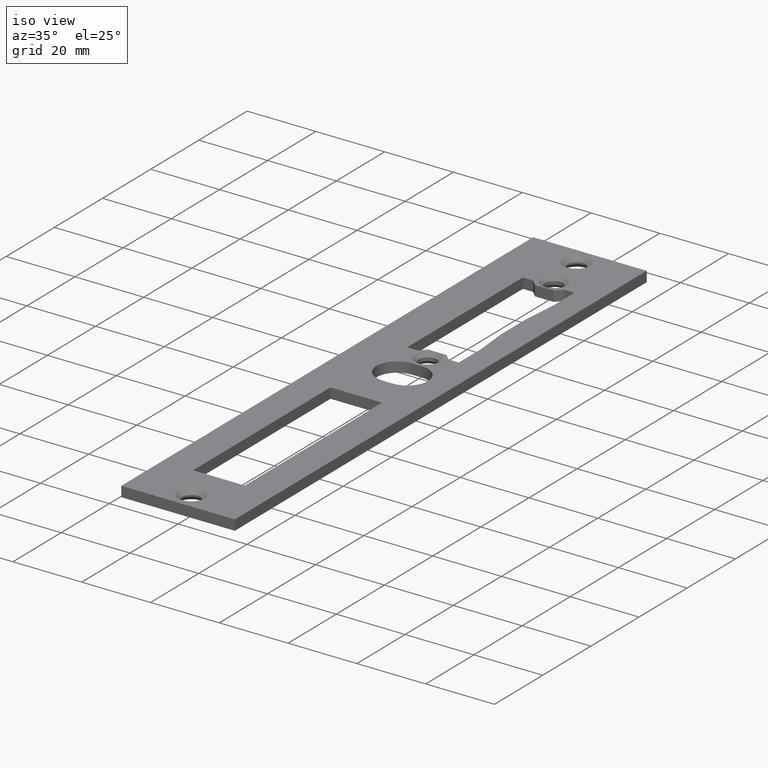
[diagram: clean part render]
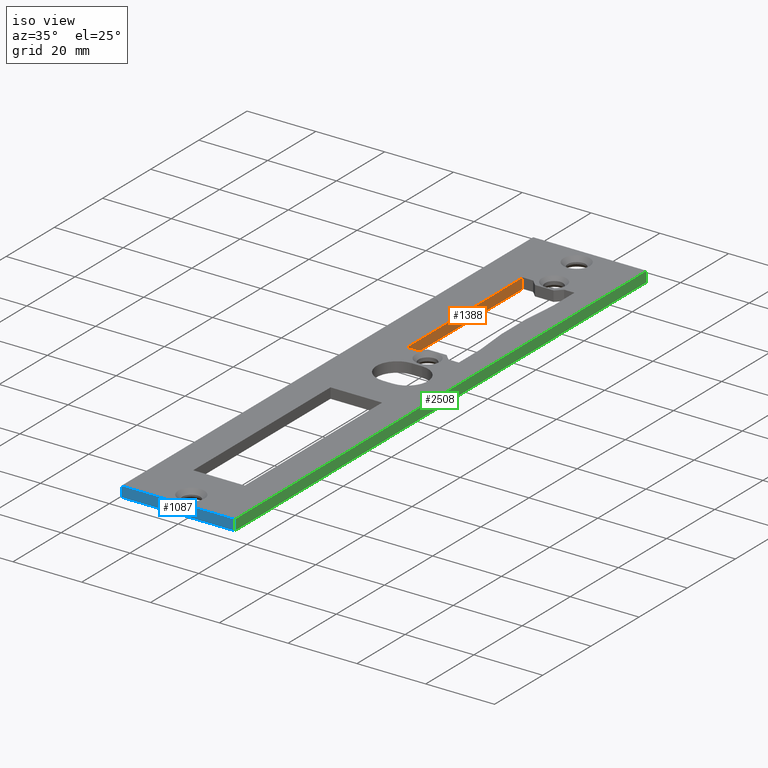
[diagram: same view with three faces highlighted in distinct colors, each labeled with its STEP entity id]
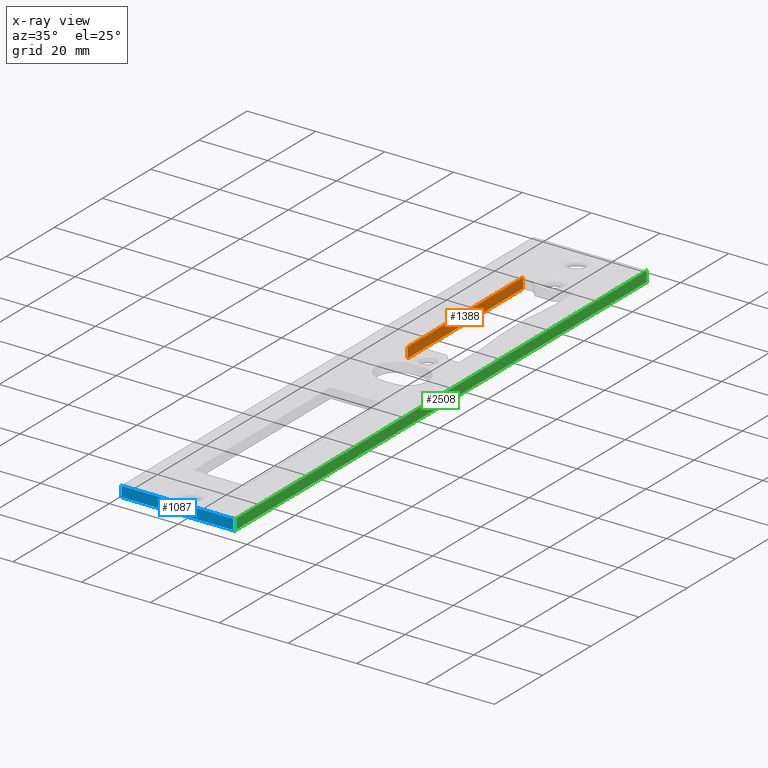
[diagram: x-ray of the same camera — body ghosted, the three highlighted faces saturated]
A machine part, iso view with three faces highlighted in distinct colors.
The next image is the same camera in x-ray (body ghosted, the three faces saturated) — at least one of them is partly hidden behind the body in this view.
Their STEP definitions:

[orange] entity #1388 — the highlighted planar face has unit normal (1, 0, -0).
#11 = VERTEX_POINT ( 'NONE', #2658 ) ;
#430 = CARTESIAN_POINT ( 'NONE',  ( -5.499999999999975131, -1.987703982890080780E-16, 3.000000000000000888 ) ) ;
#1130 = VERTEX_POINT ( 'NONE', #3932 ) ;
#1209 = DIRECTION ( 'NONE',  ( -3.614007241618345443E-17, 1.000000000000000000, 0.000000000000000000 ) ) ;
#1388 = ADVANCED_FACE ( 'NONE', ( #5460 ), #8883, .T. ) ;
#1743 = EDGE_CURVE ( 'NONE', #1130, #8403, #3670, .T. ) ;
#1823 = DIRECTION ( 'NONE',  ( -0.000000000000000000, -0.000000000000000000, -1.000000000000000000 ) ) ;
#2046 = ORIENTED_EDGE ( 'NONE', *, *, #1743, .T. ) ;
#2300 = ORIENTED_EDGE ( 'NONE', *, *, #2656, .F. ) ;
#2498 = CARTESIAN_POINT ( 'NONE',  ( -5.499999999999975131, -1.987703982890080780E-16, 0.000000000000000000 ) ) ;
#2656 = EDGE_CURVE ( 'NONE', #11, #6730, #7030, .T. ) ;
#2658 = CARTESIAN_POINT ( 'NONE',  ( -5.499999999999980460, 151.0000000000000284, 3.000000000000000888 ) ) ;
#2925 = CARTESIAN_POINT ( 'NONE',  ( -5.499999999999978684, 102.9999999999999858, 0.000000000000000000 ) ) ;
#3565 = VECTOR ( 'NONE', #3613, 1000.000000000000000 ) ;
#3613 = DIRECTION ( 'NONE',  ( -0.000000000000000000, -0.000000000000000000, -1.000000000000000000 ) ) ;
#3670 = LINE ( 'NONE', #7217, #3565 ) ;
#3932 = CARTESIAN_POINT ( 'NONE',  ( -5.499999999999978684, 102.9999999999999858, 3.000000000000000888 ) ) ;
#4072 = EDGE_CURVE ( 'NONE', #11, #1130, #7700, .T. ) ;
#4106 = DIRECTION ( 'NONE',  ( 1.000000000000000000, 3.614007241618345443E-17, -0.000000000000000000 ) ) ;
#4327 = CARTESIAN_POINT ( 'NONE',  ( -5.499999999999975131, -1.987703982890080780E-16, 3.000000000000000888 ) ) ;
#4672 = AXIS2_PLACEMENT_3D ( 'NONE', #430, #4106, #1209 ) ;
#5460 = FACE_OUTER_BOUND ( 'NONE', #8709, .T. ) ;
#5576 = VECTOR ( 'NONE', #1823, 1000.000000000000000 ) ;
#5610 = ORIENTED_EDGE ( 'NONE', *, *, #7059, .F. ) ;
#5715 = DIRECTION ( 'NONE',  ( 3.614007241618344826E-17, -1.000000000000000000, 0.000000000000000000 ) ) ;
#5988 = VECTOR ( 'NONE', #5715, 1000.000000000000000 ) ;
#6321 = VECTOR ( 'NONE', #7539, 1000.000000000000000 ) ;
#6394 = CARTESIAN_POINT ( 'NONE',  ( -5.499999999999980460, 151.0000000000000284, 0.000000000000000000 ) ) ;
#6730 = VERTEX_POINT ( 'NONE', #6394 ) ;
#6853 = ORIENTED_EDGE ( 'NONE', *, *, #4072, .T. ) ;
#7030 = LINE ( 'NONE', #8359, #5576 ) ;
#7059 = EDGE_CURVE ( 'NONE', #6730, #8403, #8555, .T. ) ;
#7217 = CARTESIAN_POINT ( 'NONE',  ( -5.499999999999978684, 102.9999999999999858, 3.000000000000000888 ) ) ;
#7539 = DIRECTION ( 'NONE',  ( 3.614007241618344826E-17, -1.000000000000000000, 0.000000000000000000 ) ) ;
#7700 = LINE ( 'NONE', #4327, #5988 ) ;
#8359 = CARTESIAN_POINT ( 'NONE',  ( -5.499999999999980460, 151.0000000000000284, 3.000000000000000888 ) ) ;
#8403 = VERTEX_POINT ( 'NONE', #2925 ) ;
#8555 = LINE ( 'NONE', #2498, #6321 ) ;
#8709 = EDGE_LOOP ( 'NONE', ( #5610, #2300, #6853, #2046 ) ) ;
#8883 = PLANE ( 'NONE',  #4672 ) ;

[blue] entity #1087 — the highlighted planar face has unit normal (0, 1, -0).
#126 = ORIENTED_EDGE ( 'NONE', *, *, #367, .T. ) ;
#148 = AXIS2_PLACEMENT_3D ( 'NONE', #3274, #8289, #4681 ) ;
#367 = EDGE_CURVE ( 'NONE', #785, #8977, #689, .T. ) ;
#438 = LINE ( 'NONE', #7629, #5947 ) ;
#689 = LINE ( 'NONE', #6635, #7686 ) ;
#785 = VERTEX_POINT ( 'NONE', #1126 ) ;
#1087 = ADVANCED_FACE ( 'NONE', ( #3945 ), #6096, .F. ) ;
#1126 = CARTESIAN_POINT ( 'NONE',  ( -16.50000000000000000, 0.000000000000000000, 0.000000000000000000 ) ) ;
#1362 = VERTEX_POINT ( 'NONE', #5643 ) ;
#3274 = CARTESIAN_POINT ( 'NONE',  ( -6.838144590000392414E-64, -1.062211776130383892E-31, 3.000000000000000888 ) ) ;
#3360 = CARTESIAN_POINT ( 'NONE',  ( -16.50000000000000000, 0.000000000000000000, 3.000000000000000888 ) ) ;
#3586 = EDGE_CURVE ( 'NONE', #7234, #8977, #7609, .T. ) ;
#3713 = ORIENTED_EDGE ( 'NONE', *, *, #9102, .T. ) ;
#3750 = DIRECTION ( 'NONE',  ( -0.000000000000000000, -0.000000000000000000, -1.000000000000000000 ) ) ;
#3774 = EDGE_LOOP ( 'NONE', ( #126, #4305, #8931, #3713 ) ) ;
#3945 = FACE_OUTER_BOUND ( 'NONE', #3774, .T. ) ;
#4305 = ORIENTED_EDGE ( 'NONE', *, *, #3586, .F. ) ;
#4681 = DIRECTION ( 'NONE',  ( -1.000000000000000000, 6.437647128062932015E-33, 0.000000000000000000 ) ) ;
#4724 = VECTOR ( 'NONE', #7728, 1000.000000000000000 ) ;
#5643 = CARTESIAN_POINT ( 'NONE',  ( -16.50000000000000000, 0.000000000000000000, 3.000000000000000888 ) ) ;
#5947 = VECTOR ( 'NONE', #6210, 1000.000000000000000 ) ;
#6096 = PLANE ( 'NONE',  #148 ) ;
#6210 = DIRECTION ( 'NONE',  ( 1.000000000000000000, -6.437647128062932015E-33, 0.000000000000000000 ) ) ;
#6635 = CARTESIAN_POINT ( 'NONE',  ( -6.838144590000392414E-64, -1.062211776130383892E-31, 0.000000000000000000 ) ) ;
#7234 = VERTEX_POINT ( 'NONE', #7833 ) ;
#7485 = VECTOR ( 'NONE', #3750, 1000.000000000000000 ) ;
#7565 = CARTESIAN_POINT ( 'NONE',  ( 16.50000000000000000, -2.124423552260767784E-31, 0.000000000000000000 ) ) ;
#7609 = LINE ( 'NONE', #8797, #7485 ) ;
#7629 = CARTESIAN_POINT ( 'NONE',  ( -6.838144590000392414E-64, -1.062211776130383892E-31, 3.000000000000000888 ) ) ;
#7672 = EDGE_CURVE ( 'NONE', #1362, #7234, #438, .T. ) ;
#7686 = VECTOR ( 'NONE', #8063, 1000.000000000000000 ) ;
#7728 = DIRECTION ( 'NONE',  ( -0.000000000000000000, -0.000000000000000000, -1.000000000000000000 ) ) ;
#7833 = CARTESIAN_POINT ( 'NONE',  ( 16.50000000000000000, -2.124423552260767784E-31, 3.000000000000000888 ) ) ;
#8063 = DIRECTION ( 'NONE',  ( 1.000000000000000000, -6.437647128062932015E-33, 0.000000000000000000 ) ) ;
#8289 = DIRECTION ( 'NONE',  ( 6.437647128062932015E-33, 1.000000000000000000, -0.000000000000000000 ) ) ;
#8761 = LINE ( 'NONE', #3360, #4724 ) ;
#8797 = CARTESIAN_POINT ( 'NONE',  ( 16.50000000000000000, -2.124423552260767784E-31, 3.000000000000000888 ) ) ;
#8931 = ORIENTED_EDGE ( 'NONE', *, *, #7672, .F. ) ;
#8977 = VERTEX_POINT ( 'NONE', #7565 ) ;
#9102 = EDGE_CURVE ( 'NONE', #1362, #785, #8761, .T. ) ;

[green] entity #2508 — the highlighted planar face has unit normal (-1, 0, 0).
#783 = EDGE_LOOP ( 'NONE', ( #3476, #3605, #7859, #6381 ) ) ;
#950 = EDGE_CURVE ( 'NONE', #8977, #5162, #4970, .T. ) ;
#1937 = VECTOR ( 'NONE', #4128, 1000.000000000000000 ) ;
#1982 = CARTESIAN_POINT ( 'NONE',  ( 16.50000000000000000, -2.008627182709986664E-15, 3.000000000000000888 ) ) ;
#2241 = DIRECTION ( 'NONE',  ( -1.000000000000000000, 1.217349807703022609E-16, 0.000000000000000000 ) ) ;
#2508 = ADVANCED_FACE ( 'NONE', ( #4543 ), #5141, .F. ) ;
#2926 = CARTESIAN_POINT ( 'NONE',  ( 16.50000000000000000, -2.008627182709986664E-15, 3.000000000000000888 ) ) ;
#3476 = ORIENTED_EDGE ( 'NONE', *, *, #950, .T. ) ;
#3586 = EDGE_CURVE ( 'NONE', #7234, #8977, #7609, .T. ) ;
#3605 = ORIENTED_EDGE ( 'NONE', *, *, #7173, .F. ) ;
#3612 = LINE ( 'NONE', #4809, #4064 ) ;
#3750 = DIRECTION ( 'NONE',  ( -0.000000000000000000, -0.000000000000000000, -1.000000000000000000 ) ) ;
#4064 = VECTOR ( 'NONE', #6975, 1000.000000000000000 ) ;
#4128 = DIRECTION ( 'NONE',  ( 1.217349807703022362E-16, 1.000000000000000000, 0.000000000000000000 ) ) ;
#4216 = CARTESIAN_POINT ( 'NONE',  ( 16.50000000000002132, 171.0000000000000000, 0.000000000000000000 ) ) ;
#4292 = VECTOR ( 'NONE', #8101, 1000.000000000000000 ) ;
#4532 = CARTESIAN_POINT ( 'NONE',  ( 16.50000000000000000, -2.008627182709986664E-15, 0.000000000000000000 ) ) ;
#4543 = FACE_OUTER_BOUND ( 'NONE', #783, .T. ) ;
#4809 = CARTESIAN_POINT ( 'NONE',  ( 16.50000000000002132, 171.0000000000000000, 3.000000000000000888 ) ) ;
#4970 = LINE ( 'NONE', #4532, #4292 ) ;
#5141 = PLANE ( 'NONE',  #6497 ) ;
#5162 = VERTEX_POINT ( 'NONE', #4216 ) ;
#5423 = CARTESIAN_POINT ( 'NONE',  ( 16.50000000000002132, 171.0000000000000000, 3.000000000000000888 ) ) ;
#5679 = LINE ( 'NONE', #1982, #1937 ) ;
#6381 = ORIENTED_EDGE ( 'NONE', *, *, #3586, .T. ) ;
#6497 = AXIS2_PLACEMENT_3D ( 'NONE', #2926, #2241, #7314 ) ;
#6975 = DIRECTION ( 'NONE',  ( -0.000000000000000000, -0.000000000000000000, -1.000000000000000000 ) ) ;
#7173 = EDGE_CURVE ( 'NONE', #8950, #5162, #3612, .T. ) ;
#7234 = VERTEX_POINT ( 'NONE', #7833 ) ;
#7314 = DIRECTION ( 'NONE',  ( -1.217349807703022609E-16, -1.000000000000000000, 0.000000000000000000 ) ) ;
#7485 = VECTOR ( 'NONE', #3750, 1000.000000000000000 ) ;
#7565 = CARTESIAN_POINT ( 'NONE',  ( 16.50000000000000000, -2.124423552260767784E-31, 0.000000000000000000 ) ) ;
#7609 = LINE ( 'NONE', #8797, #7485 ) ;
#7833 = CARTESIAN_POINT ( 'NONE',  ( 16.50000000000000000, -2.124423552260767784E-31, 3.000000000000000888 ) ) ;
#7859 = ORIENTED_EDGE ( 'NONE', *, *, #8618, .F. ) ;
#8101 = DIRECTION ( 'NONE',  ( 1.217349807703022362E-16, 1.000000000000000000, 0.000000000000000000 ) ) ;
#8618 = EDGE_CURVE ( 'NONE', #7234, #8950, #5679, .T. ) ;
#8797 = CARTESIAN_POINT ( 'NONE',  ( 16.50000000000000000, -2.124423552260767784E-31, 3.000000000000000888 ) ) ;
#8950 = VERTEX_POINT ( 'NONE', #5423 ) ;
#8977 = VERTEX_POINT ( 'NONE', #7565 ) ;